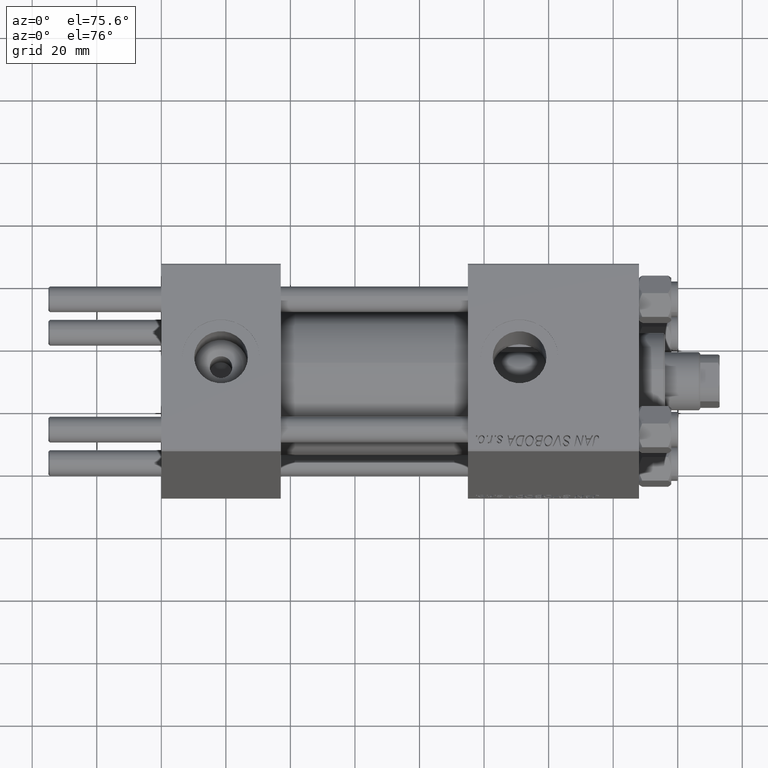
[diagram: clean part render]
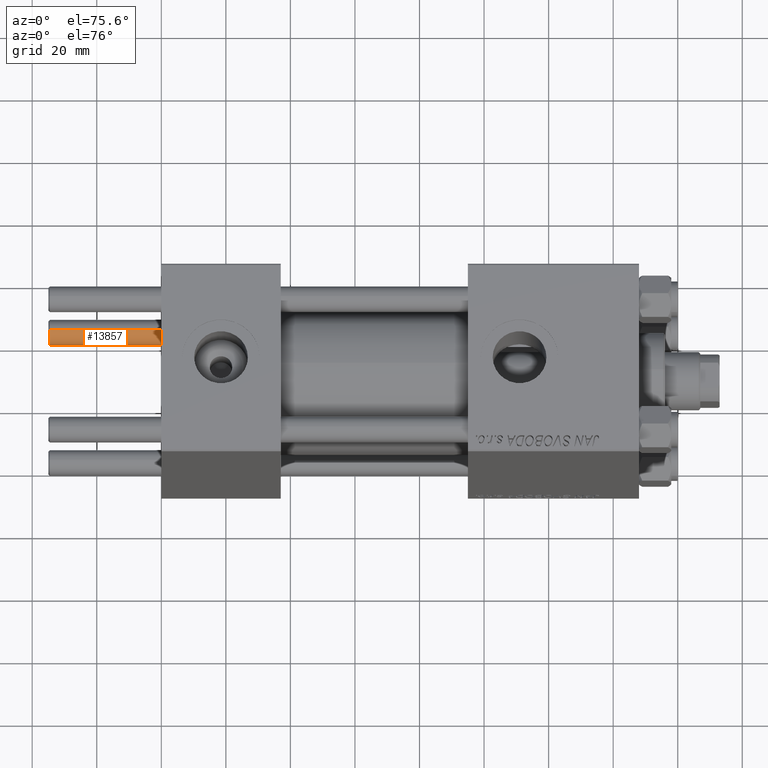
[diagram: same view with one face highlighted and labeled with its STEP entity id]
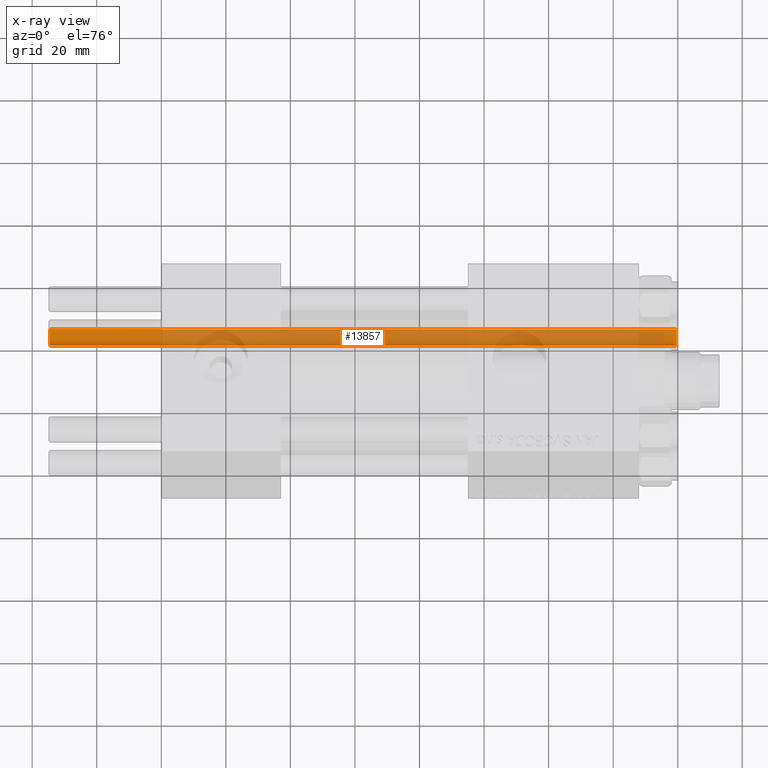
[diagram: x-ray of the same camera — body ghosted, the highlighted face saturated]
A machine part, auxiliary view. The second image highlights one B-rep face of the part: STEP entity #13857.
The next image is the same camera in x-ray: the body ghosted, the highlighted face saturated — about 79% of this face is hidden behind the body in this view.
In plain terms, the highlighted cylindrical surface (edge-blend (fillet) strip) has radius 4 mm, axis along (1, 0, -0).
Its self-contained STEP definition (entity closure, byte-faithful):
#479 = CARTESIAN_POINT ( 'NONE',  ( 4.000000000000000000, 4.898587196589412829E-16, 194.5000000000000568 ) ) ;
#1147 = CARTESIAN_POINT ( 'NONE',  ( -4.000000000000000000, 0.000000000000000000, 0.5000000000000004441 ) ) ;
#2146 = LINE ( 'NONE', #10222, #21801 ) ;
#6105 = AXIS2_PLACEMENT_3D ( 'NONE', #24099, #47081, #39775 ) ;
#6667 = DIRECTION ( 'NONE',  ( 0.000000000000000000, 0.000000000000000000, -1.000000000000000000 ) ) ;
#7890 = VERTEX_POINT ( 'NONE', #13259 ) ;
#10222 = CARTESIAN_POINT ( 'NONE',  ( 4.000000000000000000, 4.898587196589412829E-16, 195.0000000000000000 ) ) ;
#13259 = CARTESIAN_POINT ( 'NONE',  ( 4.000000000000000000, 4.898587196589412829E-16, 0.5000000000000004441 ) ) ;
#13741 = DIRECTION ( 'NONE',  ( 1.000000000000000000, 0.000000000000000000, 0.000000000000000000 ) ) ;
#13857 = ADVANCED_FACE ( 'NONE', ( #35837 ), #27248, .T. ) ;
#19155 = VERTEX_POINT ( 'NONE', #1147 ) ;
#20971 = AXIS2_PLACEMENT_3D ( 'NONE', #49465, #42163, #13741 ) ;
#20998 = LINE ( 'NONE', #36379, #39180 ) ;
#21801 = VECTOR ( 'NONE', #33951, 1000.000000000000000 ) ;
#22308 = ORIENTED_EDGE ( 'NONE', *, *, #42421, .T. ) ;
#22571 = DIRECTION ( 'NONE',  ( 1.000000000000000000, 0.000000000000000000, 0.000000000000000000 ) ) ;
#24099 = CARTESIAN_POINT ( 'NONE',  ( 0.000000000000000000, 0.000000000000000000, 195.0000000000000000 ) ) ;
#24142 = EDGE_CURVE ( 'NONE', #51532, #47619, #28753, .T. ) ;
#26471 = CARTESIAN_POINT ( 'NONE',  ( 0.000000000000000000, 0.000000000000000000, 194.5000000000000568 ) ) ;
#27248 = CYLINDRICAL_SURFACE ( 'NONE', #6105, 4.000000000000000000 ) ;
#27629 = CIRCLE ( 'NONE', #20971, 4.000000000000000000 ) ;
#28559 = DIRECTION ( 'NONE',  ( -0.000000000000000000, -0.000000000000000000, -1.000000000000000000 ) ) ;
#28753 = CIRCLE ( 'NONE', #30426, 4.000000000000000000 ) ;
#30426 = AXIS2_PLACEMENT_3D ( 'NONE', #26471, #6667, #22571 ) ;
#31175 = ORIENTED_EDGE ( 'NONE', *, *, #45646, .T. ) ;
#31818 = ORIENTED_EDGE ( 'NONE', *, *, #24142, .T. ) ;
#32325 = ORIENTED_EDGE ( 'NONE', *, *, #46151, .F. ) ;
#32994 = EDGE_LOOP ( 'NONE', ( #32325, #31818, #22308, #31175 ) ) ;
#33777 = CARTESIAN_POINT ( 'NONE',  ( -4.000000000000000000, 0.000000000000000000, 194.5000000000000568 ) ) ;
#33951 = DIRECTION ( 'NONE',  ( -0.000000000000000000, -0.000000000000000000, -1.000000000000000000 ) ) ;
#35837 = FACE_OUTER_BOUND ( 'NONE', #32994, .T. ) ;
#36379 = CARTESIAN_POINT ( 'NONE',  ( -4.000000000000000000, 0.000000000000000000, 195.0000000000000000 ) ) ;
#39180 = VECTOR ( 'NONE', #28559, 1000.000000000000000 ) ;
#39775 = DIRECTION ( 'NONE',  ( -1.000000000000000000, 0.000000000000000000, 0.000000000000000000 ) ) ;
#42163 = DIRECTION ( 'NONE',  ( -0.000000000000000000, -0.000000000000000000, 1.000000000000000000 ) ) ;
#42421 = EDGE_CURVE ( 'NONE', #47619, #19155, #20998, .T. ) ;
#45646 = EDGE_CURVE ( 'NONE', #19155, #7890, #27629, .T. ) ;
#46151 = EDGE_CURVE ( 'NONE', #51532, #7890, #2146, .T. ) ;
#47081 = DIRECTION ( 'NONE',  ( -0.000000000000000000, -0.000000000000000000, -1.000000000000000000 ) ) ;
#47619 = VERTEX_POINT ( 'NONE', #33777 ) ;
#49465 = CARTESIAN_POINT ( 'NONE',  ( 0.000000000000000000, 0.000000000000000000, 0.5000000000000004441 ) ) ;
#51532 = VERTEX_POINT ( 'NONE', #479 ) ;